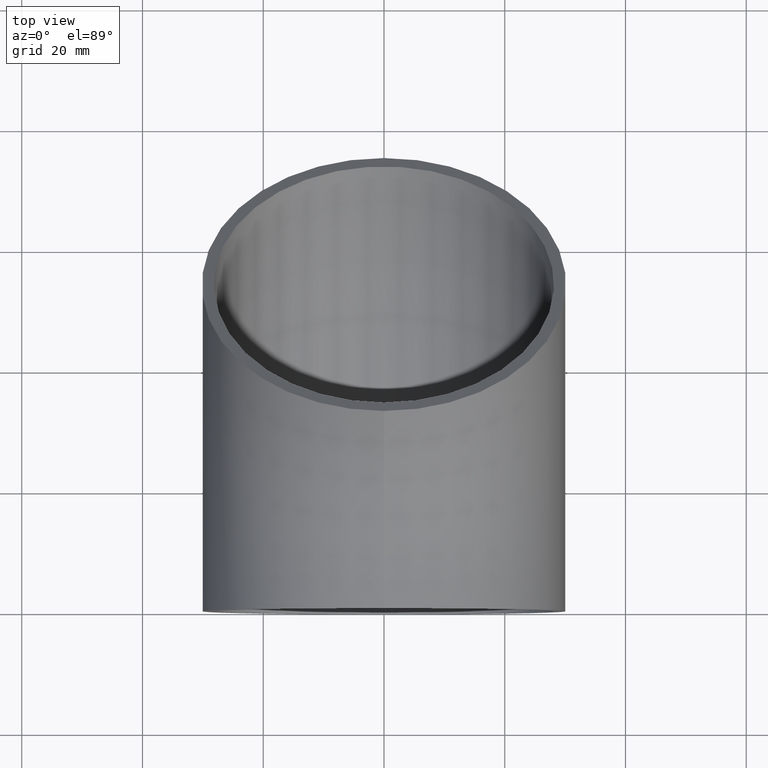
[diagram: clean part render]
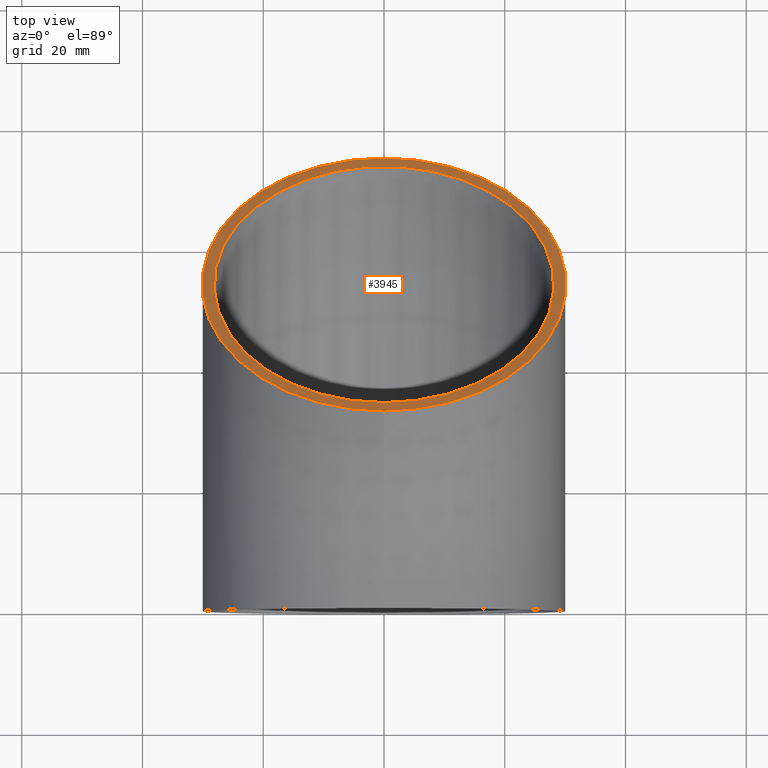
[diagram: same view with one face highlighted and labeled with its STEP entity id]
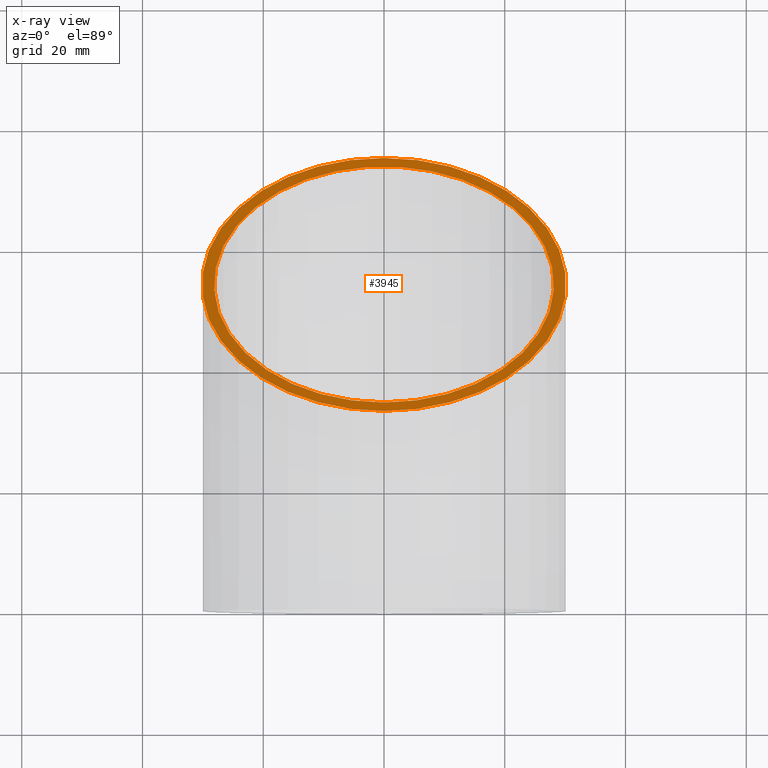
[diagram: x-ray of the same camera — body ghosted, the highlighted face saturated]
A machine part, top view. The second image highlights one B-rep face of the part: STEP entity #3945.
The next image is the same camera in x-ray: the body ghosted, the highlighted face saturated — about 0% of this face is hidden behind the body in this view.
In plain terms, the highlighted planar face has unit normal (0, 0.7071, 0.7071).
Its self-contained STEP definition (entity closure, byte-faithful):
#285 = VERTEX_POINT ( 'NONE', #3733 ) ;
#351 = FACE_OUTER_BOUND ( 'NONE', #2435, .T. ) ;
#897 = DIRECTION ( 'NONE',  ( 0.000000000000000000, -0.7071067811865476838, 0.7071067811865473507 ) ) ;
#1289 = AXIS2_PLACEMENT_3D ( 'NONE', #1745, #3718, #897 ) ;
#1745 = CARTESIAN_POINT ( 'NONE',  ( 0.000000000000000000, 53.74011537017761952, -53.74011537017759821 ) ) ;
#1880 = CARTESIAN_POINT ( 'NONE',  ( 0.000000000000000000, 32.42084591740321287, -32.42084591740319155 ) ) ;
#1897 = AXIS2_PLACEMENT_3D ( 'NONE', #4000, #2172, #9668 ) ;
#2172 = DIRECTION ( 'NONE',  ( 0.000000000000000000, 0.7071067811865473507, 0.7071067811865477948 ) ) ;
#2290 = PLANE ( 'NONE',  #1897 ) ;
#2435 = EDGE_LOOP ( 'NONE', ( #2820 ) ) ;
#2500 = EDGE_CURVE ( 'NONE', #285, #285, #9024, .T. ) ;
#2820 = ORIENTED_EDGE ( 'NONE', *, *, #3770, .T. ) ;
#3349 = AXIS2_PLACEMENT_3D ( 'NONE', #6003, #4318, #11656 ) ;
#3718 = DIRECTION ( 'NONE',  ( 0.000000000000000000, 0.7071067811865473507, 0.7071067811865476838 ) ) ;
#3733 = CARTESIAN_POINT ( 'NONE',  ( 0.000000000000000000, 33.83505947977630512, -33.83505947977628381 ) ) ;
#3770 = EDGE_CURVE ( 'NONE', #7356, #7356, #11876, .T. ) ;
#3945 = ADVANCED_FACE ( 'NONE', ( #9442, #351 ), #2290, .T. ) ;
#4000 = CARTESIAN_POINT ( 'NONE',  ( 0.000000000000000000, 53.74011537017761952, -53.74011537017759821 ) ) ;
#4318 = DIRECTION ( 'NONE',  ( 0.000000000000000000, 0.7071067811865473507, 0.7071067811865476838 ) ) ;
#6003 = CARTESIAN_POINT ( 'NONE',  ( 0.000000000000000000, 53.74011537017761952, -53.74011537017759821 ) ) ;
#6553 = ORIENTED_EDGE ( 'NONE', *, *, #2500, .F. ) ;
#7356 = VERTEX_POINT ( 'NONE', #1880 ) ;
#9024 = CIRCLE ( 'NONE', #3349, 28.15000000000000568 ) ;
#9064 = EDGE_LOOP ( 'NONE', ( #6553 ) ) ;
#9442 = FACE_BOUND ( 'NONE', #9064, .T. ) ;
#9668 = DIRECTION ( 'NONE',  ( 0.000000000000000000, -0.7071067811865477948, 0.7071067811865473507 ) ) ;
#11656 = DIRECTION ( 'NONE',  ( 0.000000000000000000, -0.7071067811865476838, 0.7071067811865474617 ) ) ;
#11876 = CIRCLE ( 'NONE', #1289, 30.14999999999999858 ) ;